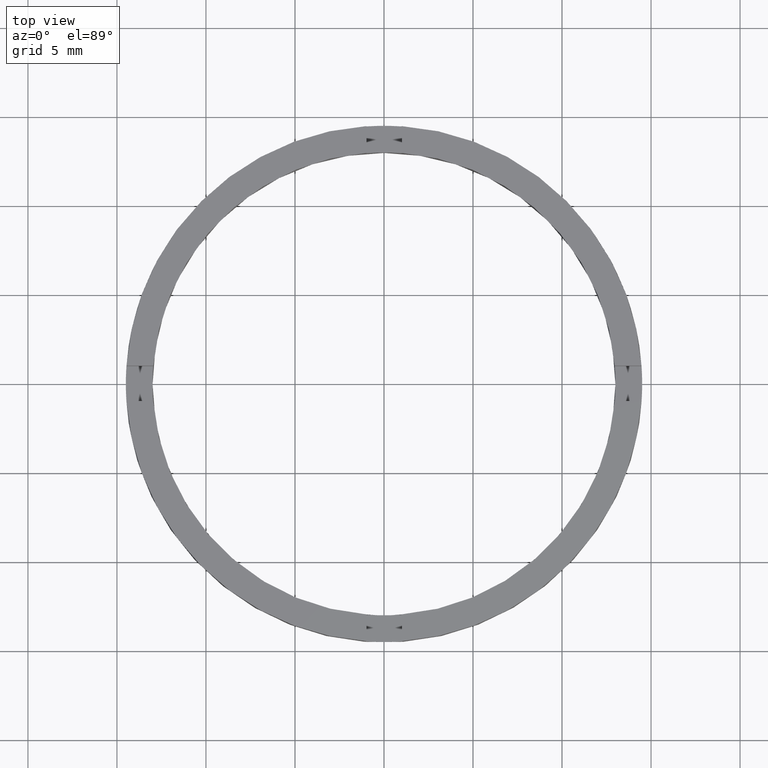
[diagram: clean part render]
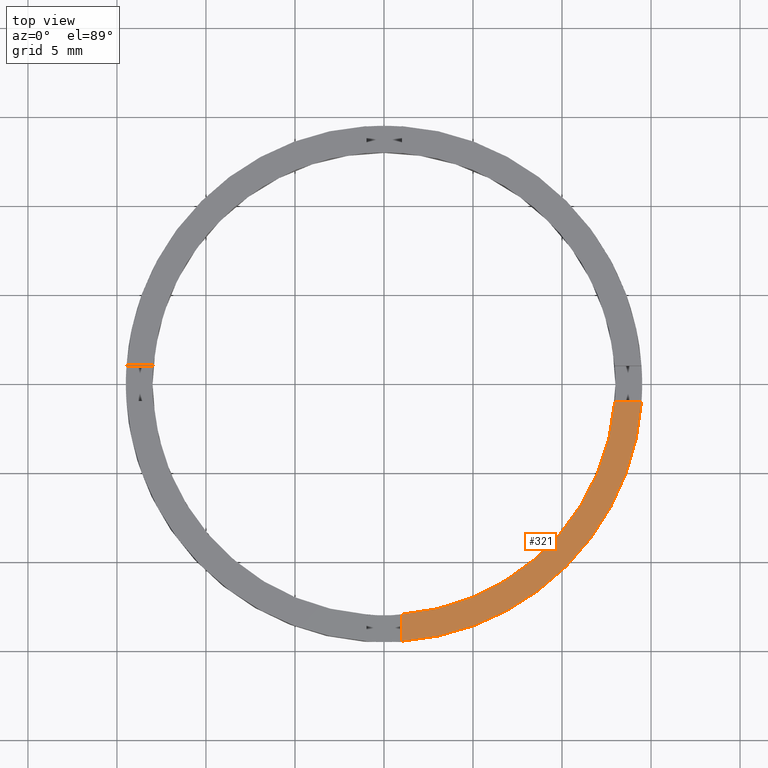
[diagram: same view with one face highlighted and labeled with its STEP entity id]
A machine part, top view. The second image highlights one B-rep face of the part: STEP entity #321.
In plain terms, the highlighted planar face has unit normal (0, 0, 1).
Its self-contained STEP definition (entity closure, byte-faithful):
#3 = DIRECTION ( 'NONE',  ( 1.000000000000000000, 0.000000000000000000, 0.000000000000000000 ) ) ;
#9 = PLANE ( 'NONE',  #580 ) ;
#15 = DIRECTION ( 'NONE',  ( 0.000000000000000000, 0.000000000000000000, 1.000000000000000000 ) ) ;
#25 = DIRECTION ( 'NONE',  ( 1.000000000000000000, 0.000000000000000000, 0.000000000000000000 ) ) ;
#36 = CARTESIAN_POINT ( 'NONE',  ( 0.9999999999998366862, -12.96148139681573497, 2.500000000000000000 ) ) ;
#42 = DIRECTION ( 'NONE',  ( 0.000000000000000000, 0.000000000000000000, 1.000000000000000000 ) ) ;
#65 = CARTESIAN_POINT ( 'NONE',  ( 0.000000000000000000, 0.000000000000000000, 2.500000000000000000 ) ) ;
#119 = DIRECTION ( 'NONE',  ( 0.000000000000000000, 0.000000000000000000, 1.000000000000000000 ) ) ;
#144 = EDGE_CURVE ( 'NONE', #447, #484, #640, .T. ) ;
#176 = VERTEX_POINT ( 'NONE', #36 ) ;
#180 = CARTESIAN_POINT ( 'NONE',  ( 0.000000000000000000, 0.000000000000000000, 2.500000000000000000 ) ) ;
#183 = ORIENTED_EDGE ( 'NONE', *, *, #144, .F. ) ;
#197 = ORIENTED_EDGE ( 'NONE', *, *, #211, .F. ) ;
#211 = EDGE_CURVE ( 'NONE', #516, #176, #354, .T. ) ;
#243 = EDGE_CURVE ( 'NONE', #516, #484, #636, .T. ) ;
#260 = EDGE_LOOP ( 'NONE', ( #183, #466, #197, #699 ) ) ;
#283 = CARTESIAN_POINT ( 'NONE',  ( 0.000000000000000000, 0.000000000000000000, 2.500000000000000000 ) ) ;
#302 = CIRCLE ( 'NONE', #473, 13.00000000000000178 ) ;
#318 = DIRECTION ( 'NONE',  ( 1.000000000000000000, 4.336808689942017736E-17, 0.000000000000000000 ) ) ;
#321 = ADVANCED_FACE ( 'NONE', ( #688 ), #9, .T. ) ;
#353 = CARTESIAN_POINT ( 'NONE',  ( 0.9999999999998356870, -4.500000000000181188, 2.500000000000000000 ) ) ;
#354 = LINE ( 'NONE', #353, #607 ) ;
#408 = VECTOR ( 'NONE', #318, 1000.000000000000000 ) ;
#447 = VERTEX_POINT ( 'NONE', #498 ) ;
#459 = AXIS2_PLACEMENT_3D ( 'NONE', #180, #15, #3 ) ;
#466 = ORIENTED_EDGE ( 'NONE', *, *, #753, .F. ) ;
#473 = AXIS2_PLACEMENT_3D ( 'NONE', #283, #42, #25 ) ;
#484 = VERTEX_POINT ( 'NONE', #743 ) ;
#498 = CARTESIAN_POINT ( 'NONE',  ( 12.96148139681570832, -1.000000000000159428, 2.500000000000000000 ) ) ;
#516 = VERTEX_POINT ( 'NONE', #687 ) ;
#534 = DIRECTION ( 'NONE',  ( 1.000000000000000000, 0.000000000000000000, -0.000000000000000000 ) ) ;
#580 = AXIS2_PLACEMENT_3D ( 'NONE', #65, #119, #534 ) ;
#601 = CARTESIAN_POINT ( 'NONE',  ( 4.499999999999995559, -1.000000000000159872, 2.500000000000000000 ) ) ;
#607 = VECTOR ( 'NONE', #714, 1000.000000000000000 ) ;
#636 = CIRCLE ( 'NONE', #459, 14.50000000000000000 ) ;
#640 = LINE ( 'NONE', #601, #408 ) ;
#687 = CARTESIAN_POINT ( 'NONE',  ( 0.9999999999998369082, -14.46547614148944483, 2.500000000000000000 ) ) ;
#688 = FACE_OUTER_BOUND ( 'NONE', #260, .T. ) ;
#699 = ORIENTED_EDGE ( 'NONE', *, *, #243, .T. ) ;
#714 = DIRECTION ( 'NONE',  ( -1.301042606982605321E-16, 1.000000000000000000, -0.000000000000000000 ) ) ;
#743 = CARTESIAN_POINT ( 'NONE',  ( 14.46547614148942174, -1.000000000000159428, 2.500000000000000000 ) ) ;
#753 = EDGE_CURVE ( 'NONE', #176, #447, #302, .T. ) ;